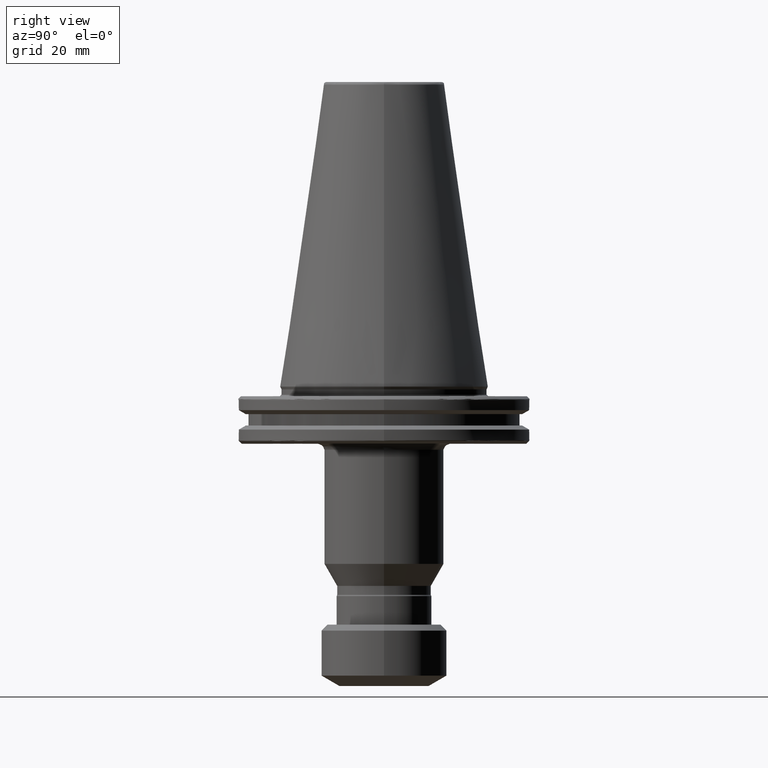
[diagram: clean part render]
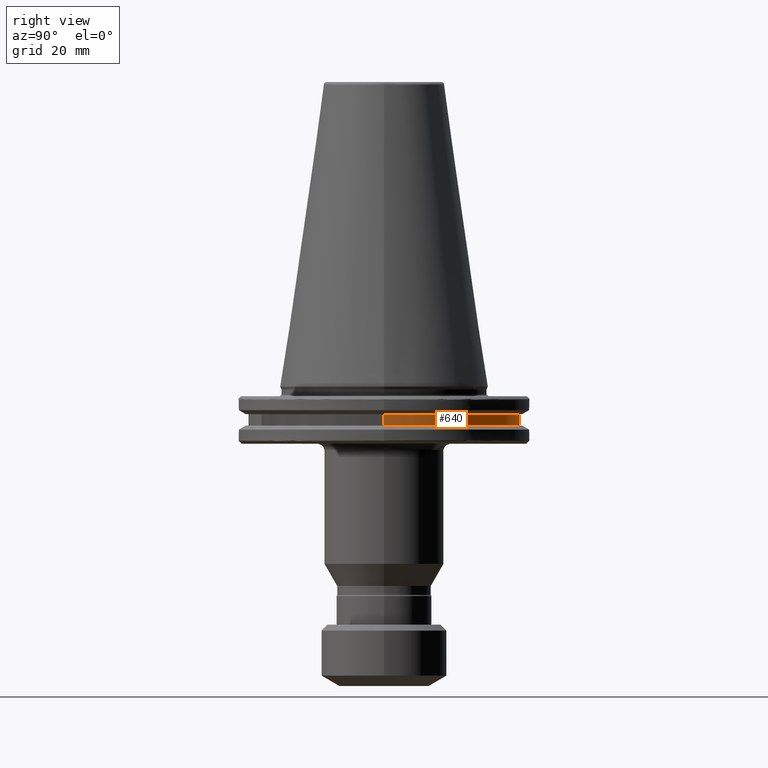
[diagram: same view with one face highlighted and labeled with its STEP entity id]
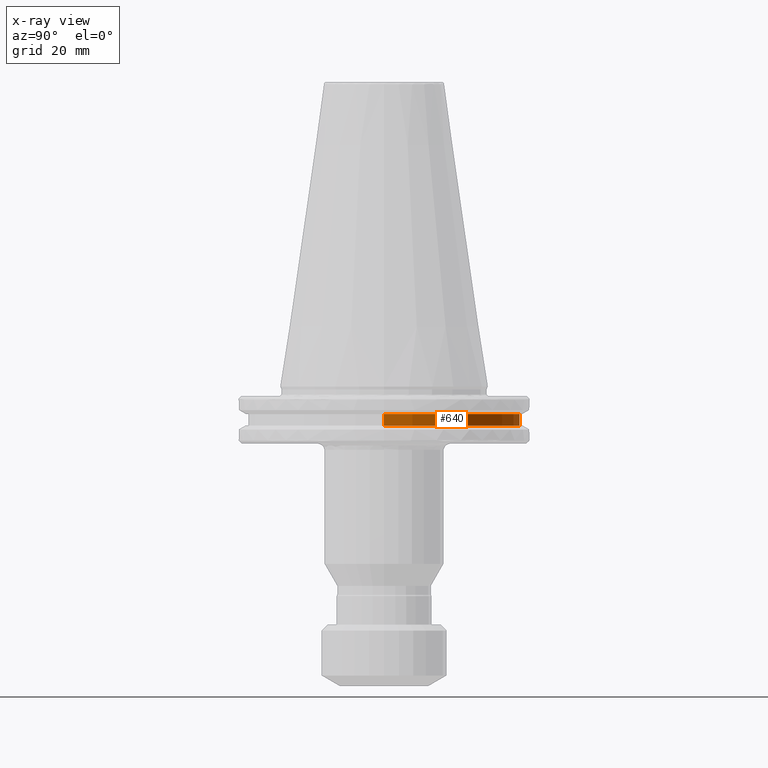
[diagram: x-ray of the same camera — body ghosted, the highlighted face saturated]
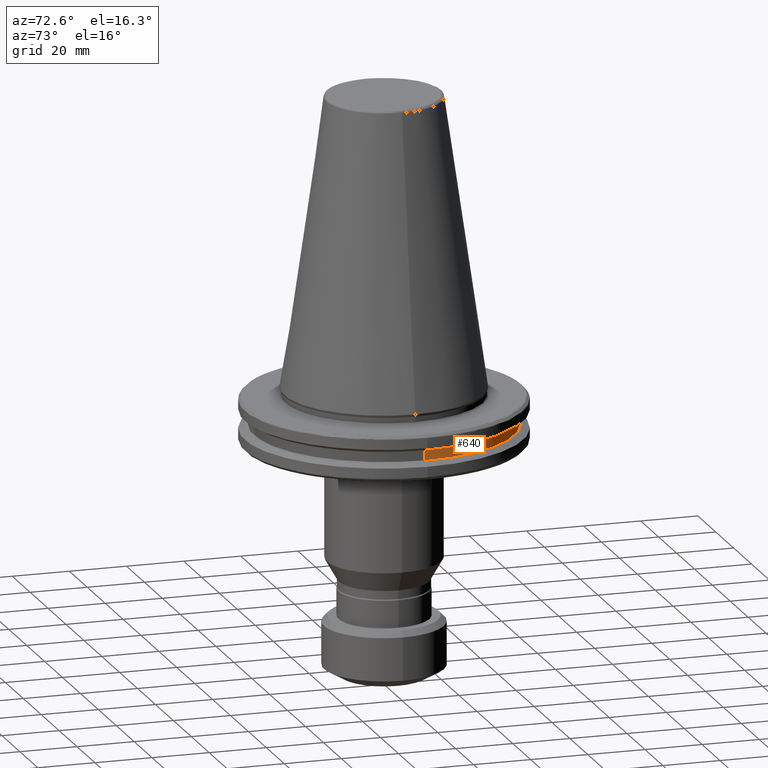
[diagram: same view with one face highlighted and labeled with its STEP entity id]
A machine part, right view. The second image highlights one B-rep face of the part: STEP entity #640.
The next image is the same camera in x-ray: the body ghosted, the highlighted face saturated — about 0% of this face is hidden behind the body in this view.
A second angle (auxiliary view) of the same face is appended — the face is thin or edge-on in the first view.
In plain terms, the highlighted cylindrical surface (partial cylindrical patch) has radius 45.5 mm, axis along (0, 0, 1).
Its self-contained STEP definition (entity closure, byte-faithful):
#27 = DIRECTION ( 'NONE',  ( 1.000000000000000000, 0.0000000000000000000, 0.0000000000000000000 ) ) ;
#184 = VERTEX_POINT ( 'NONE', #3344 ) ;
#201 = EDGE_LOOP ( 'NONE', ( #2437, #749, #884, #1154 ) ) ;
#416 = LINE ( 'NONE', #3299, #2335 ) ;
#610 = CARTESIAN_POINT ( 'NONE',  ( 45.50000000000000000, 0.0000000000000000000, -12.99999999999999800 ) ) ;
#640 = ADVANCED_FACE ( 'NONE', ( #1351 ), #1875, .T. ) ;
#649 = VECTOR ( 'NONE', #2452, 1000.000000000000000 ) ;
#706 = DIRECTION ( 'NONE',  ( 1.000000000000000000, 0.0000000000000000000, 0.0000000000000000000 ) ) ;
#729 = DIRECTION ( 'NONE',  ( 0.0000000000000000000, 0.0000000000000000000, 1.000000000000000000 ) ) ;
#749 = ORIENTED_EDGE ( 'NONE', *, *, #1718, .T. ) ;
#757 = EDGE_CURVE ( 'NONE', #3094, #184, #2203, .T. ) ;
#884 = ORIENTED_EDGE ( 'NONE', *, *, #998, .T. ) ;
#979 = DIRECTION ( 'NONE',  ( 0.0000000000000000000, 0.0000000000000000000, 1.000000000000000000 ) ) ;
#998 = EDGE_CURVE ( 'NONE', #2197, #3041, #2772, .T. ) ;
#1154 = ORIENTED_EDGE ( 'NONE', *, *, #2159, .F. ) ;
#1351 = FACE_OUTER_BOUND ( 'NONE', #201, .T. ) ;
#1661 = CARTESIAN_POINT ( 'NONE',  ( -45.50000000000000000, 5.572142936120457100E-015, 109.4760732604896600 ) ) ;
#1667 = DIRECTION ( 'NONE',  ( -0.0000000000000000000, -0.0000000000000000000, -1.000000000000000000 ) ) ;
#1696 = CARTESIAN_POINT ( 'NONE',  ( 45.50000000000000000, 0.0000000000000000000, -9.199999999999999300 ) ) ;
#1718 = EDGE_CURVE ( 'NONE', #184, #2197, #3305, .T. ) ;
#1802 = AXIS2_PLACEMENT_3D ( 'NONE', #3217, #1667, #27 ) ;
#1875 = CYLINDRICAL_SURFACE ( 'NONE', #3003, 45.50000000000000000 ) ;
#2159 = EDGE_CURVE ( 'NONE', #3094, #3041, #416, .T. ) ;
#2197 = VERTEX_POINT ( 'NONE', #2269 ) ;
#2203 = CIRCLE ( 'NONE', #3392, 45.50000000000000000 ) ;
#2269 = CARTESIAN_POINT ( 'NONE',  ( -45.50000000000000000, 5.572142936120457100E-015, -9.199999999999999300 ) ) ;
#2335 = VECTOR ( 'NONE', #3035, 1000.000000000000000 ) ;
#2343 = CARTESIAN_POINT ( 'NONE',  ( 0.0000000000000000000, 0.0000000000000000000, 109.4760732604896600 ) ) ;
#2356 = CARTESIAN_POINT ( 'NONE',  ( 0.0000000000000000000, 0.0000000000000000000, -12.99999999999999800 ) ) ;
#2437 = ORIENTED_EDGE ( 'NONE', *, *, #757, .T. ) ;
#2452 = DIRECTION ( 'NONE',  ( 0.0000000000000000000, 0.0000000000000000000, 1.000000000000000000 ) ) ;
#2600 = DIRECTION ( 'NONE',  ( 1.000000000000000000, 0.0000000000000000000, 0.0000000000000000000 ) ) ;
#2772 = CIRCLE ( 'NONE', #1802, 45.50000000000000000 ) ;
#3003 = AXIS2_PLACEMENT_3D ( 'NONE', #2343, #979, #706 ) ;
#3035 = DIRECTION ( 'NONE',  ( 0.0000000000000000000, 0.0000000000000000000, 1.000000000000000000 ) ) ;
#3041 = VERTEX_POINT ( 'NONE', #1696 ) ;
#3094 = VERTEX_POINT ( 'NONE', #610 ) ;
#3217 = CARTESIAN_POINT ( 'NONE',  ( 0.0000000000000000000, 0.0000000000000000000, -9.199999999999999300 ) ) ;
#3299 = CARTESIAN_POINT ( 'NONE',  ( 45.50000000000000000, 0.0000000000000000000, 109.4760732604896600 ) ) ;
#3305 = LINE ( 'NONE', #1661, #649 ) ;
#3344 = CARTESIAN_POINT ( 'NONE',  ( -45.50000000000000000, 5.572142936120457100E-015, -12.99999999999999800 ) ) ;
#3392 = AXIS2_PLACEMENT_3D ( 'NONE', #2356, #729, #2600 ) ;